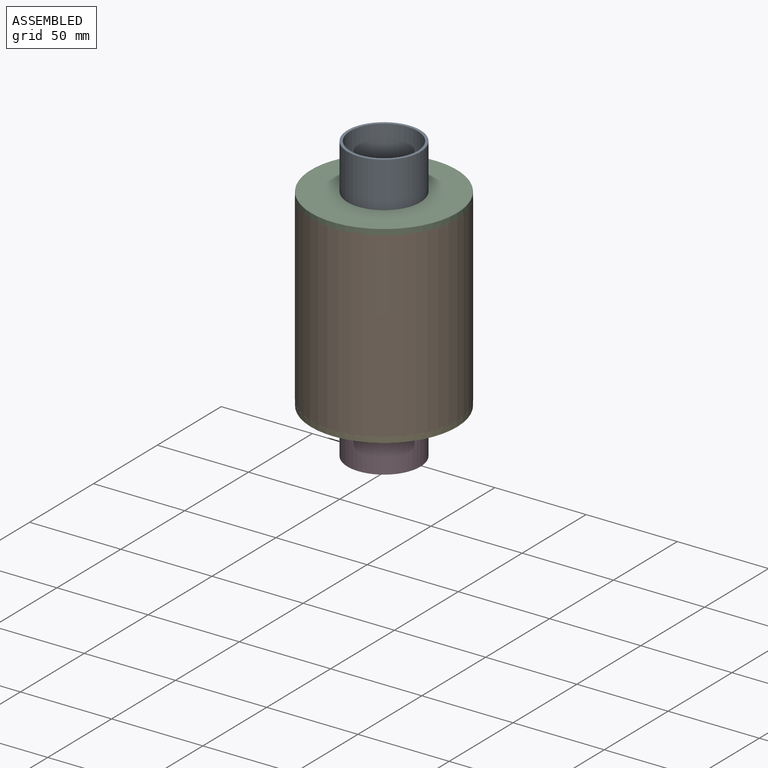
[diagram: assembled view]
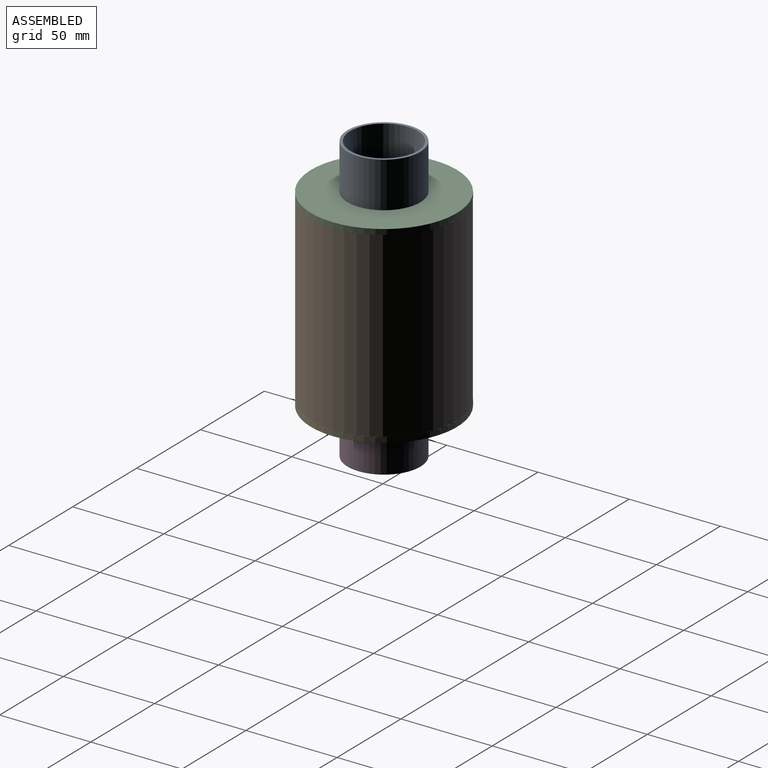
[diagram: assembled view, second angle]
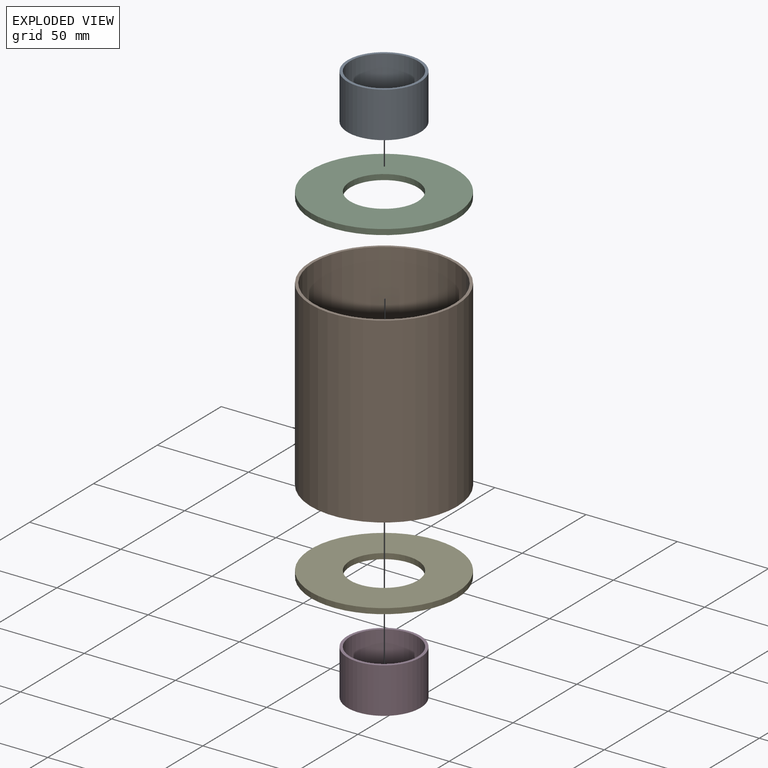
[diagram: exploded view]
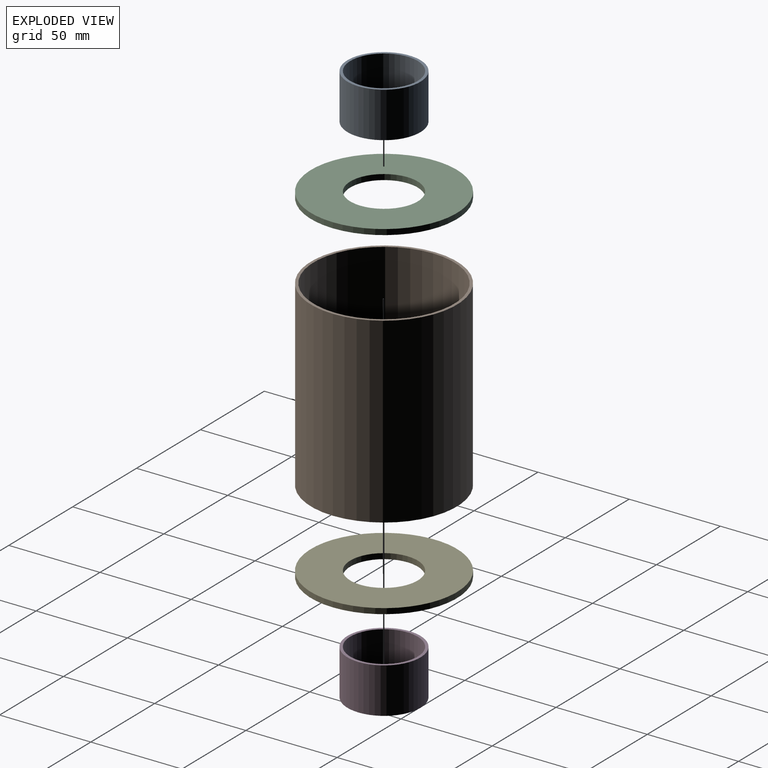
[diagram: exploded view, second angle]
ASSEMBLY  parts=5 mates=4
PART A: 4 faces, bbox 40x40x25 mm
  f0: cylinder r=18.5mm len=37mm, axis (0,0,-1), area 2906mm2, adj f2,f3
  f1: cylinder r=20mm len=40mm, axis (0,0,-1), area 3141.6mm2, adj f2,f3
  f2: plane 40x40mm, normal (0,0,1), area 181.4mm2, adj f0,f1
  f3: plane 40x40mm, normal (0,0,-1), area 181.4mm2, adj f0,f1
PART B: 4 faces, bbox 80x80x100 mm
  f0: cylinder r=38.5mm len=100mm, axis (0,0,-1), area 24190.3mm2, adj f2,f3
  f1: cylinder r=40mm len=100mm, axis (0,0,-1), area 25132.7mm2, adj f2,f3
  f2: plane 80x80mm, normal (0,0,1), area 369.9mm2, adj f0,f1
  f3: plane 80x80mm, normal (0,0,-1), area 369.9mm2, adj f0,f1
PART C: 4 faces, bbox 80x80x3 mm
  f0: cylinder r=18.5mm len=37mm, axis (0,0,-1), area 348.7mm2, adj f2,f3
  f1: cylinder r=40mm len=80mm, axis (0,0,-1), area 754mm2, adj f2,f3
  f2: plane 80x80mm, normal (0,0,1), area 3951.3mm2, adj f0,f1
  f3: plane 80x80mm, normal (0,0,-1), area 3951.3mm2, adj f0,f1
PART D: same geometry as A
PART E: same geometry as C
PLACE A rot(axis=(1,0,0),180deg) t=(-49.19,200.25,141.67)mm
PLACE B rot(axis=(1,0,0),180deg) t=(-9.53,84.04,113.67)mm
PLACE C t=(103.77,-29.48,113.67)mm
PLACE D t=(-49.19,-32.17,-14.33)mm
PLACE E rot(axis=(1,0,0),180deg) t=(103.77,197.56,13.67)mm
MATE fastened E.f0 <-> D.f0  axis (0,0,-1) through (-9.53,84.04,10.67)mm
MATE fastened C.f0 <-> A.f0  axis (0,0,1) through (-9.53,84.04,116.67)mm
MATE fastened B.f0 <-> E.f0  axis (0,0,1) through (-9.53,84.04,13.67)mm
MATE fastened C.f0 <-> B.f1  axis (0,0,-1) through (-9.53,84.04,113.67)mm
